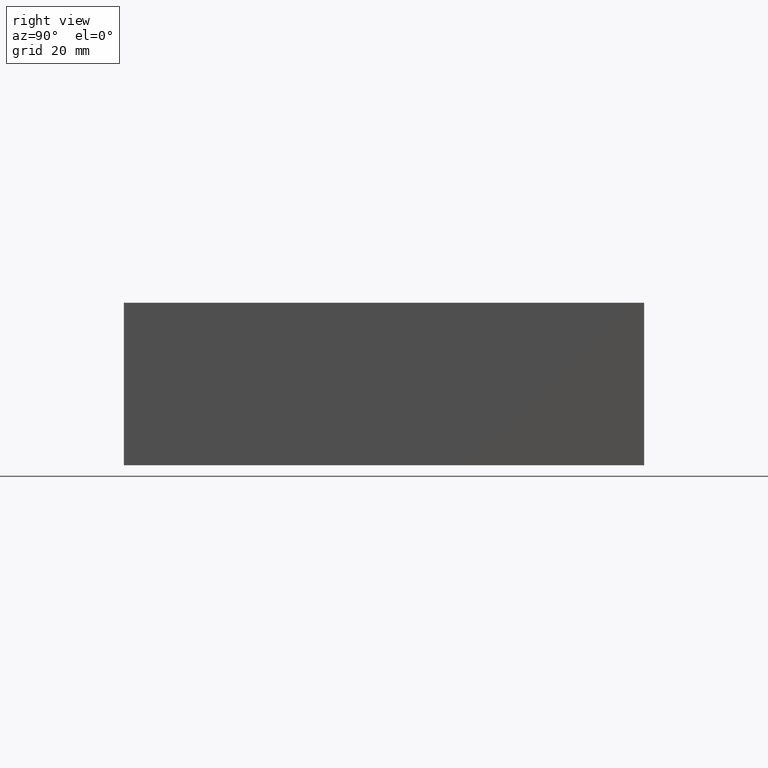
[diagram: clean part render]
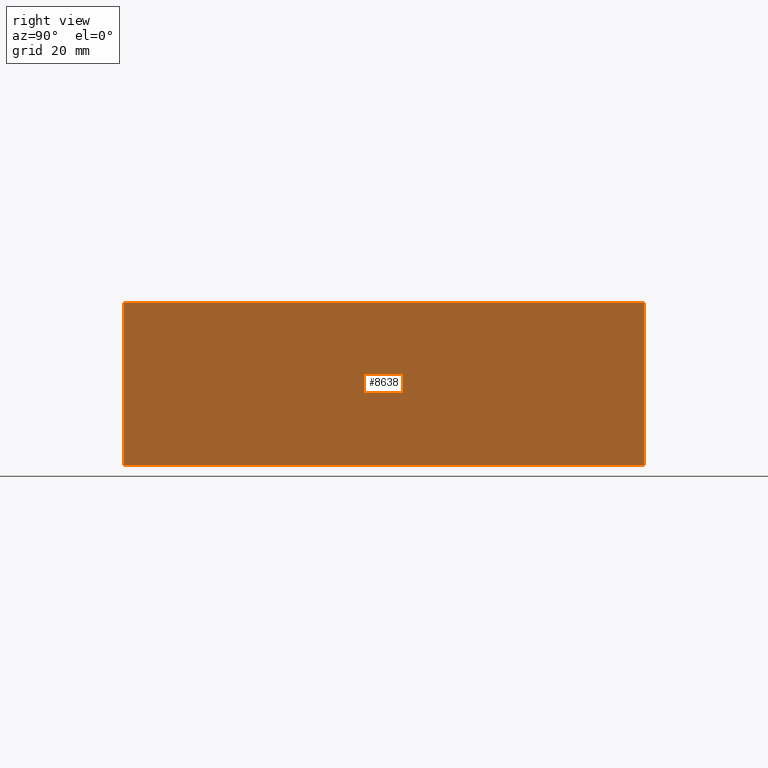
[diagram: same view with one face highlighted and labeled with its STEP entity id]
A machine part, right view. The second image highlights one B-rep face of the part: STEP entity #8638.
In plain terms, the highlighted planar face has unit normal (1, 0, 0).
Its self-contained STEP definition (entity closure, byte-faithful):
#428=PLANE('',#9015);
#864=FACE_OUTER_BOUND('',#1344,.T.);
#1344=EDGE_LOOP('',(#7644,#7645,#7646,#7647));
#2166=LINE('',#14602,#3008);
#2198=LINE('',#14815,#3040);
#2199=LINE('',#14817,#3041);
#2200=LINE('',#14818,#3042);
#3008=VECTOR('',#10338,10.);
#3040=VECTOR('',#10578,10.);
#3041=VECTOR('',#10581,10.);
#3042=VECTOR('',#10582,10.);
#4045=VERTEX_POINT('',#14599);
#4046=VERTEX_POINT('',#14601);
#4122=VERTEX_POINT('',#14811);
#4123=VERTEX_POINT('',#14813);
#5209=EDGE_CURVE('',#4045,#4046,#2166,.T.);
#5307=EDGE_CURVE('',#4122,#4123,#2198,.T.);
#5308=EDGE_CURVE('',#4045,#4122,#2199,.T.);
#5309=EDGE_CURVE('',#4046,#4123,#2200,.T.);
#7644=ORIENTED_EDGE('',*,*,#5308,.T.);
#7645=ORIENTED_EDGE('',*,*,#5307,.T.);
#7646=ORIENTED_EDGE('',*,*,#5309,.F.);
#7647=ORIENTED_EDGE('',*,*,#5209,.F.);
#8638=ADVANCED_FACE('',(#864),#428,.T.);
#9015=AXIS2_PLACEMENT_3D('',#14816,#10579,#10580);
#10338=DIRECTION('',(0.,0.,1.));
#10578=DIRECTION('',(0.,0.,1.));
#10579=DIRECTION('center_axis',(1.,0.,0.));
#10580=DIRECTION('ref_axis',(0.,1.,0.));
#10581=DIRECTION('',(0.,1.,0.));
#10582=DIRECTION('',(0.,1.,0.));
#14599=CARTESIAN_POINT('',(95.25,0.,0.));
#14601=CARTESIAN_POINT('',(95.25,0.,31.75));
#14602=CARTESIAN_POINT('',(95.25,0.,0.));
#14811=CARTESIAN_POINT('',(95.25,101.6,0.));
#14813=CARTESIAN_POINT('',(95.25,101.6,31.75));
#14815=CARTESIAN_POINT('',(95.25,101.6,0.));
#14816=CARTESIAN_POINT('Origin',(95.25,0.,0.));
#14817=CARTESIAN_POINT('',(95.25,0.,0.));
#14818=CARTESIAN_POINT('',(95.25,0.,31.75));